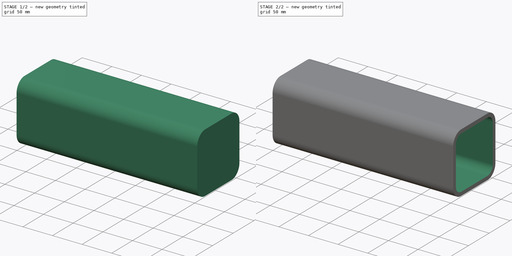
[diagram: build sequence overview — one tinted view per stage of 2, left to right]
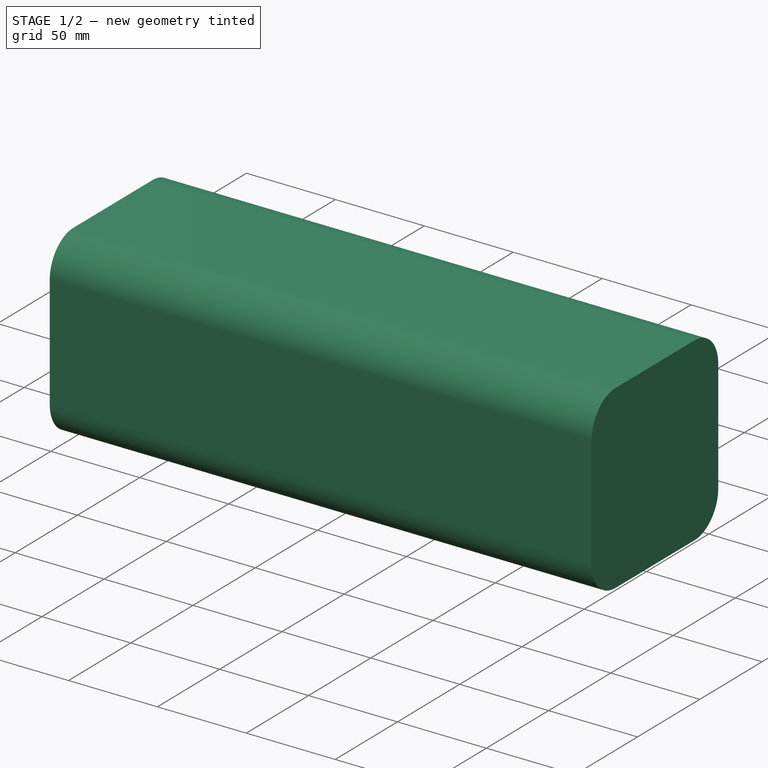
[diagram: stage 1 of 2 — iso view after this stage's code; geometry added in this stage tinted green]
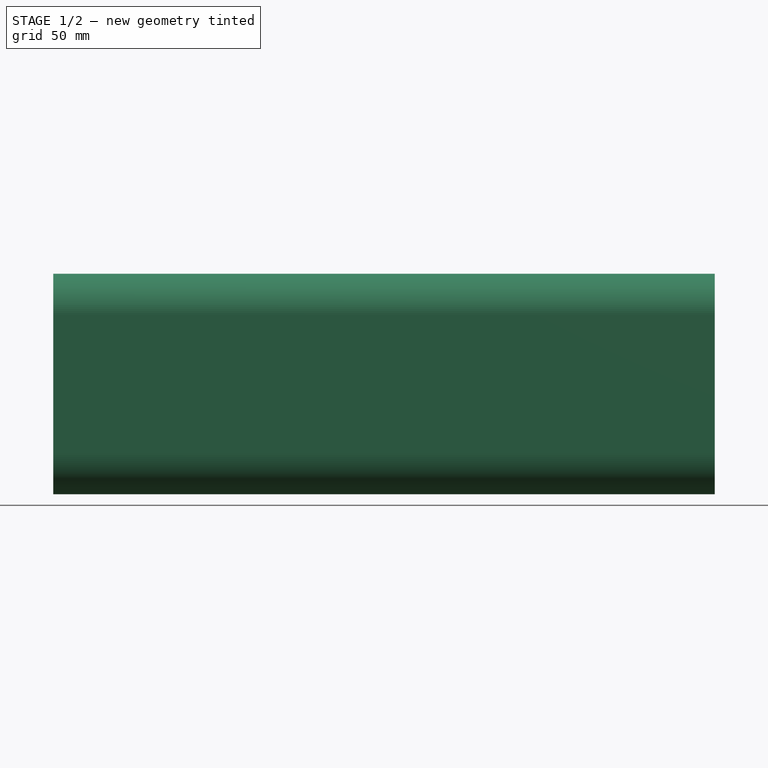
[diagram: stage 1 of 2 — front view after this stage's code; geometry added in this stage tinted green]
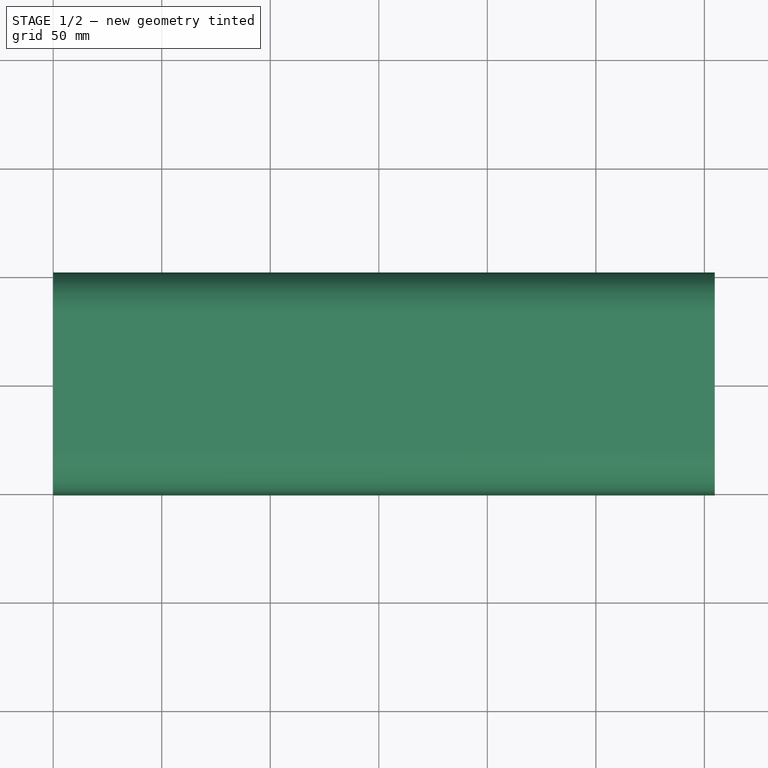
[diagram: stage 1 of 2 — top view after this stage's code; geometry added in this stage tinted green]
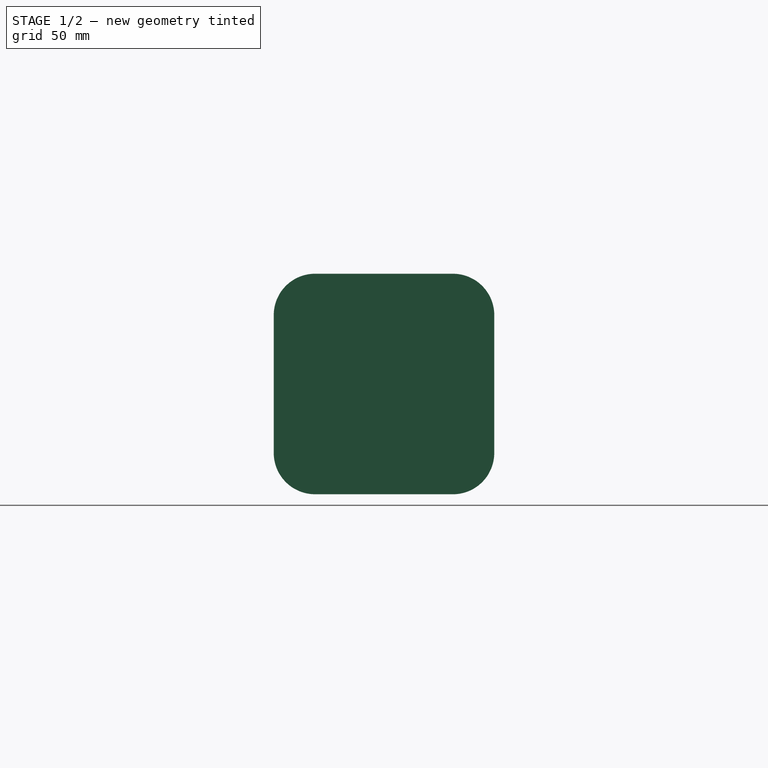
[diagram: stage 1 of 2 — right view after this stage's code; geometry added in this stage tinted green]
FCSTD DOCUMENT  (FreeCAD 0.18R16131 (Git))
Label: 4x4Tube
License: All rights reserved
LicenseURL: http://en.wikipedia.org/wiki/All_rights_reserved
objects: Sketcher::SketchObject×2, PartDesign::Fillet×2, Spreadsheet::Sheet×1, PartDesign::Pad×1, PartDesign::Pocket×1, PartDesign::Body×1
note: 9 computed .brp shape members not serialized (recipe doc carries the construction recipe); baked Part::Feature solids carry a one-line shape summary decoded from their .brp

FEATURE [Spreadsheet::Sheet] Spreadsheet  label="p"
  cells = A1=Title; B1=Desired Dimension; C1=Converted to mm; A2=Width; B2=4; C2(w)==B2 * 25.4; A3=Length; B3=12; C3(length)==B3 * 25.4; A4=Wall Thickness; B4==1 / 4; C4(th)==B4 * 25.4; A5=Tolerance; C5(tol)=2; A6=BevelEdge; B6=0.75; C6(bevel)==B6 * 25.4
FEATURE [Sketcher::SketchObject] Sketch  label="4x4BodySketch"
  MapMode = 5
  Placement = pos=(0,0,0) rot=(0.57735,0.57735,0.57735;2.0944rad)
  Support = -> [YZ_Plane]
  expr: Constraints[6] = p.w
  sketch-geometry (4):
    g0: LineSegment StartX=-50.8 StartY=50.8 StartZ=0 EndX=50.8 EndY=50.8 EndZ=0
    g1: LineSegment StartX=50.8 StartY=50.8 StartZ=0 EndX=50.8 EndY=-50.8 EndZ=0
    g2: LineSegment StartX=50.8 StartY=-50.8 StartZ=0 EndX=-50.8 EndY=-50.8 EndZ=0
    g3: LineSegment StartX=-50.8 StartY=-50.8 StartZ=0 EndX=-50.8 EndY=50.8 EndZ=0
  constraints (10):
    c: Coincident(g0,g1)
    c: Coincident(g1,g2)
    c: Coincident(g2,g3)
    c: Coincident(g3,g0)
    c: Horizontal(g2)
    c: Vertical(g1)
    c: DistanceX(g0,g0) = 101.6
    c: Equal(g1,g0)
    c: Symmetric(g0,g0,g-2)
    c: Symmetric(g0,g2,g-1)
FEATURE [PartDesign::Pad] Pad  label="4x4Pad"
  Length = 304.8
  Length2 = 100.076
  Placement = pos=(0,0,0) rot=(0.57735,0.57735,0.57735;2.0944rad)
  Profile = -> Sketch
  Type = 0
  expr: Length = p.length
FEATURE [PartDesign::Fillet] Fillet  label="OuterBevel"
  Base = -> Pad [Edge2,Edge1,Edge5,Edge8]
  BaseFeature = -> Pad
  Placement = pos=(0,0,0) rot=(0.57735,0.57735,0.57735;2.0944rad)
  Radius = 19.05
  expr: Radius = p.bevel
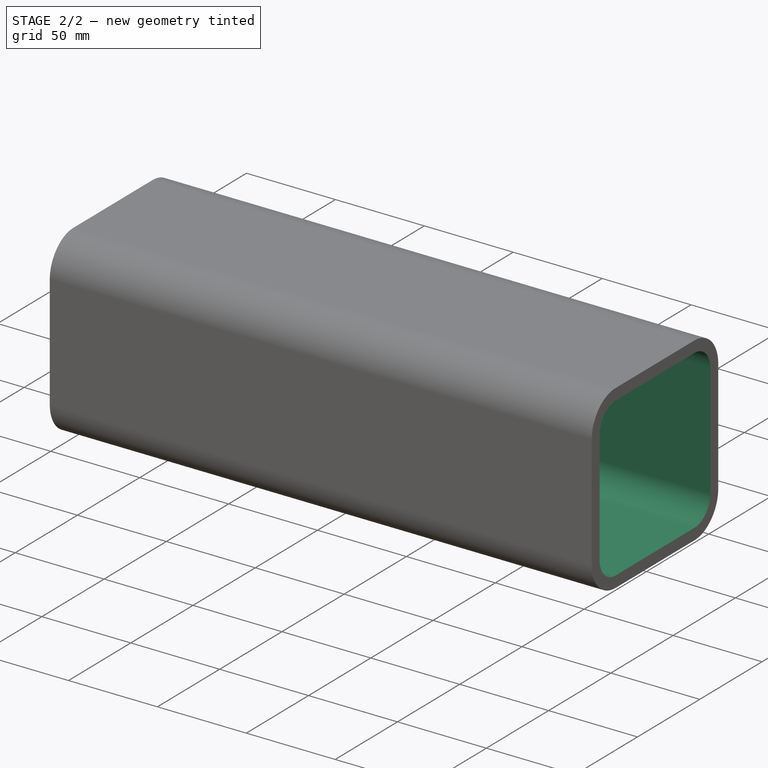
[diagram: stage 2 of 2 — iso view after this stage's code; geometry added in this stage tinted green]
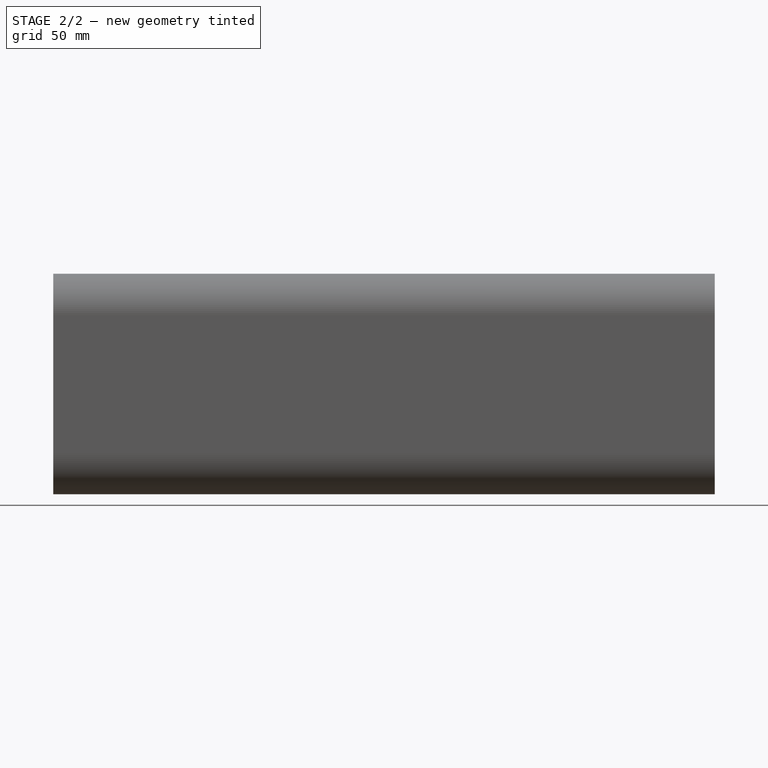
[diagram: stage 2 of 2 — front view after this stage's code; geometry added in this stage tinted green]
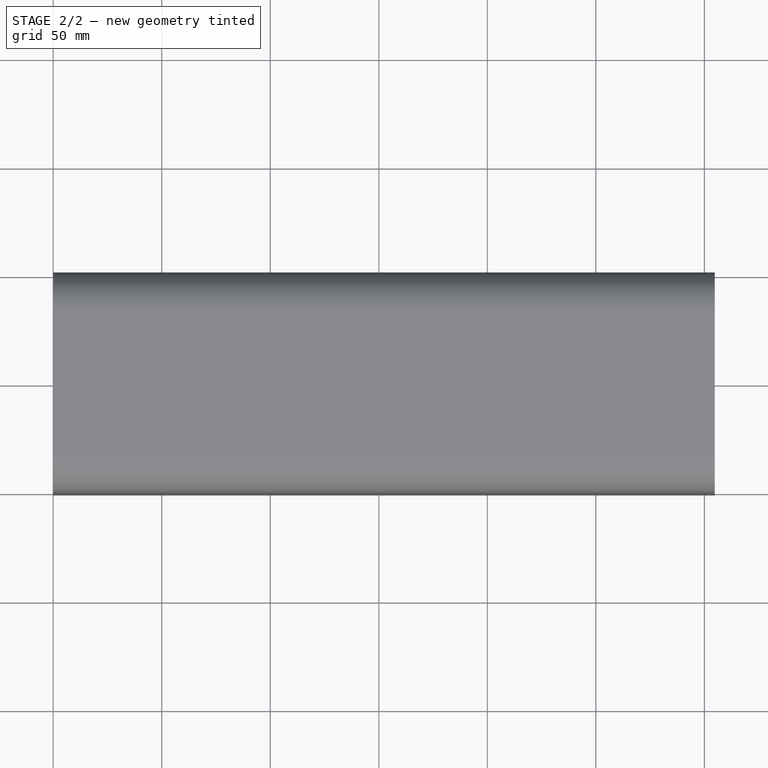
[diagram: stage 2 of 2 — top view after this stage's code; geometry added in this stage tinted green]
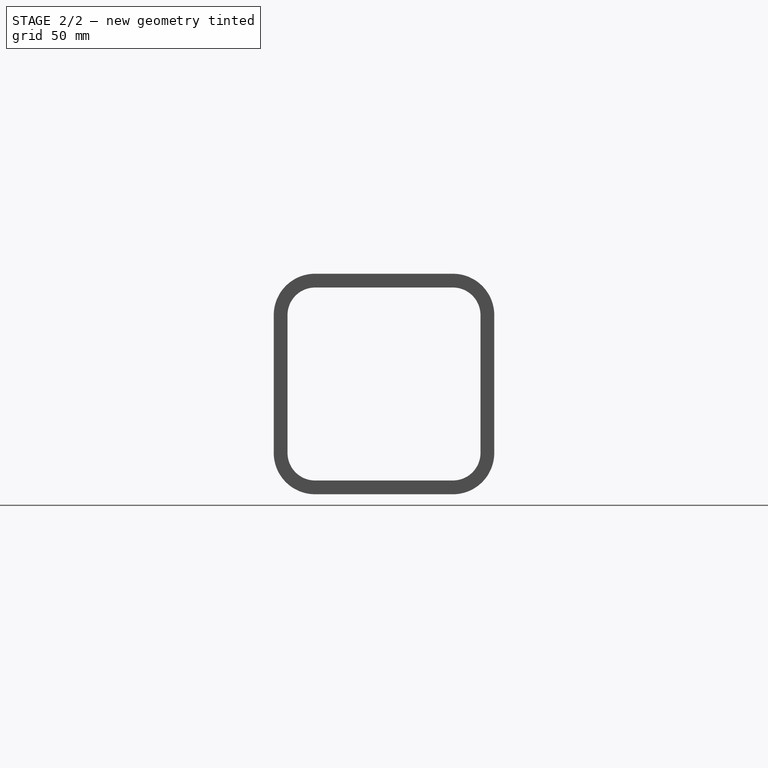
[diagram: stage 2 of 2 — right view after this stage's code; geometry added in this stage tinted green]
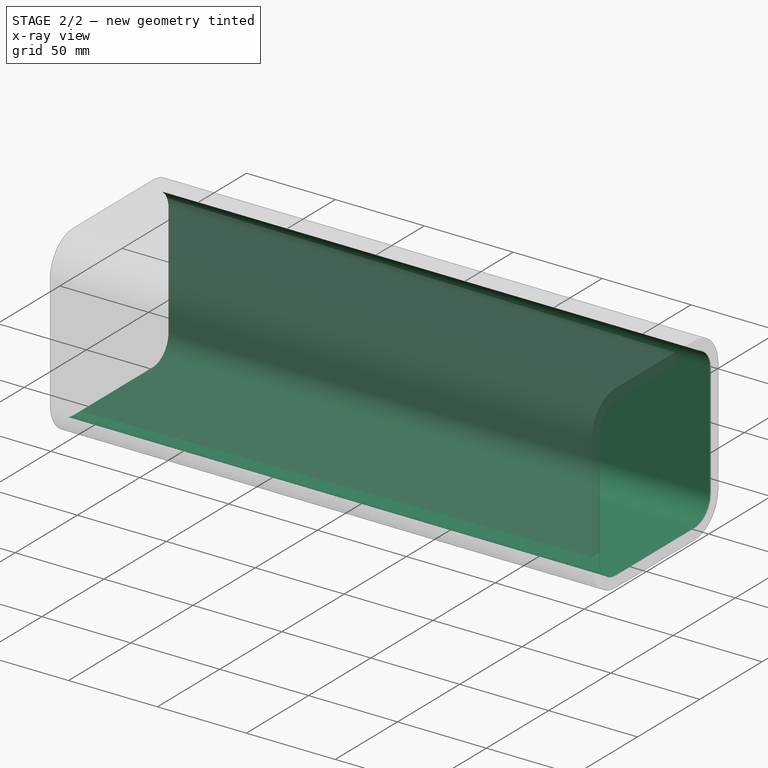
[diagram: stage 2 of 2 — x-ray composite at the iso view; earlier geometry ghosted, this stage's added geometry solid]
FEATURE [Sketcher::SketchObject] Sketch001  label="4x4HoleSketch"
  MapMode = 5
  Placement = pos=(0,0,0) rot=(0.57735,0.57735,0.57735;2.0944rad)
  Support = -> [YZ_Plane]
  expr: Constraints[7] = p.w - p.th * 2
  sketch-geometry (4):
    g0: LineSegment StartX=-44.45 StartY=44.45 StartZ=0 EndX=44.45 EndY=44.45 EndZ=0
    g1: LineSegment StartX=44.45 StartY=44.45 StartZ=0 EndX=44.45 EndY=-44.45 EndZ=0
    g2: LineSegment StartX=44.45 StartY=-44.45 StartZ=0 EndX=-44.45 EndY=-44.45 EndZ=0
    g3: LineSegment StartX=-44.45 StartY=-44.45 StartZ=0 EndX=-44.45 EndY=44.45 EndZ=0
  constraints (10):
    c: Coincident(g0,g1)
    c: Coincident(g1,g2)
    c: Coincident(g2,g3)
    c: Coincident(g3,g0)
    c: Horizontal(g2)
    c: Vertical(g3)
    c: Equal(g1,g0)
    c: DistanceX(g0,g0) = 88.9
    c: Symmetric(g0,g0,g-2)
    c: Symmetric(g1,g0,g-1)
FEATURE [PartDesign::Pocket] Pocket  label="4x4HolePocket"
  BaseFeature = -> Fillet
  Length = 5.08
  Length2 = 100.076
  Placement = pos=(0,0,0) rot=(0.57735,0.57735,0.57735;2.0944rad)
  Profile = -> Sketch001
  Reversed = true
  Type = 1
FEATURE [PartDesign::Fillet] Fillet001  label="InnerBevel"
  Base = -> Pocket [Edge36,Edge34,Edge33,Edge35]
  BaseFeature = -> Pocket
  Placement = pos=(0,0,0) rot=(0.57735,0.57735,0.57735;2.0944rad)
  Radius = 12.7
  expr: Radius = p.bevel - p.th
FEATURE [PartDesign::Body] Body  label="4x4Tube"
  Group = -> [Sketch,Pad,Fillet,Sketch001,Pocket,Fillet001]
  Origin = -> Origin
  Tip = -> Fillet001
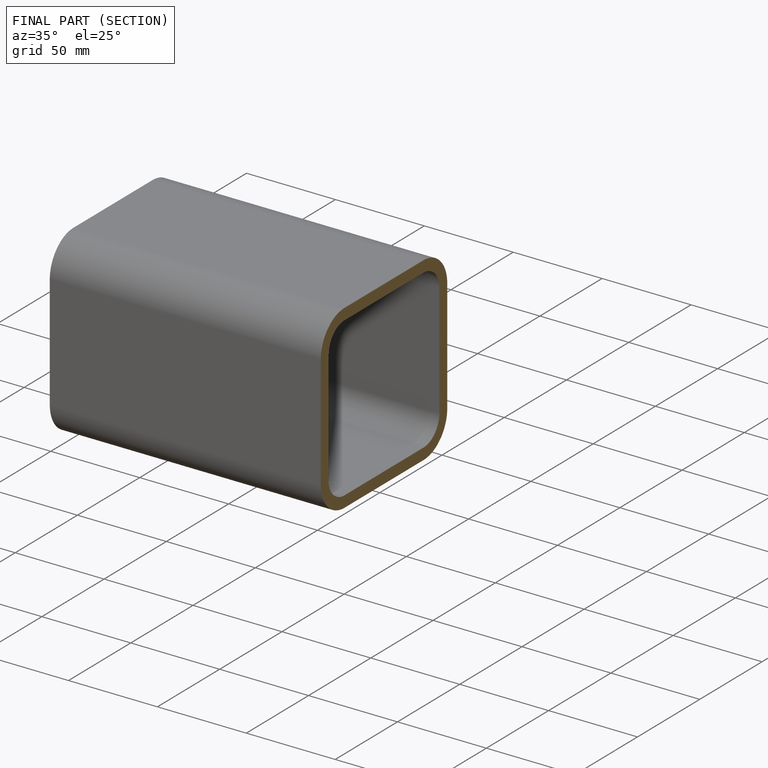
[diagram: finished part — half-section view (interior)]
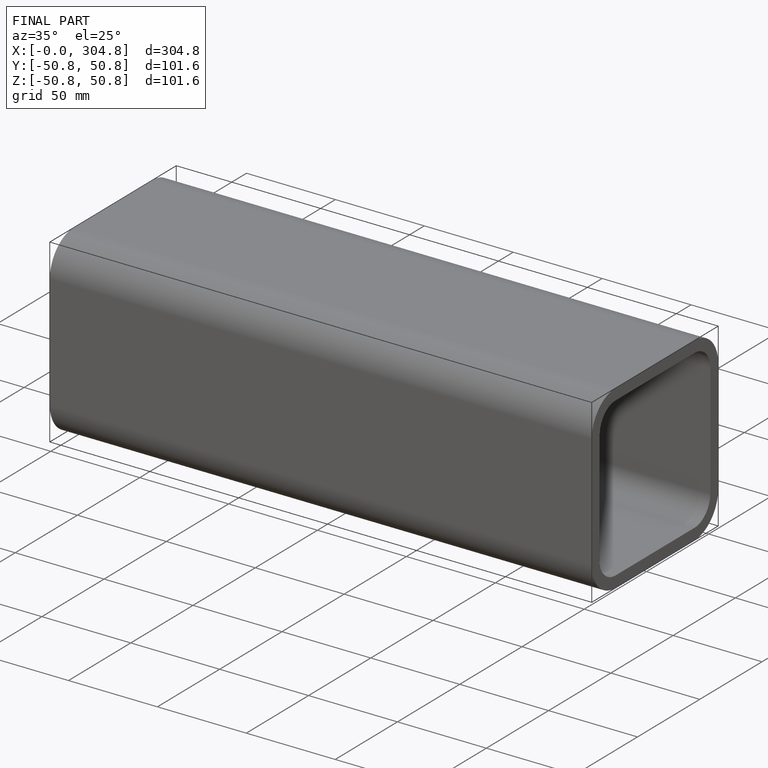
[diagram: finished part — iso view with bounding-box wireframe]
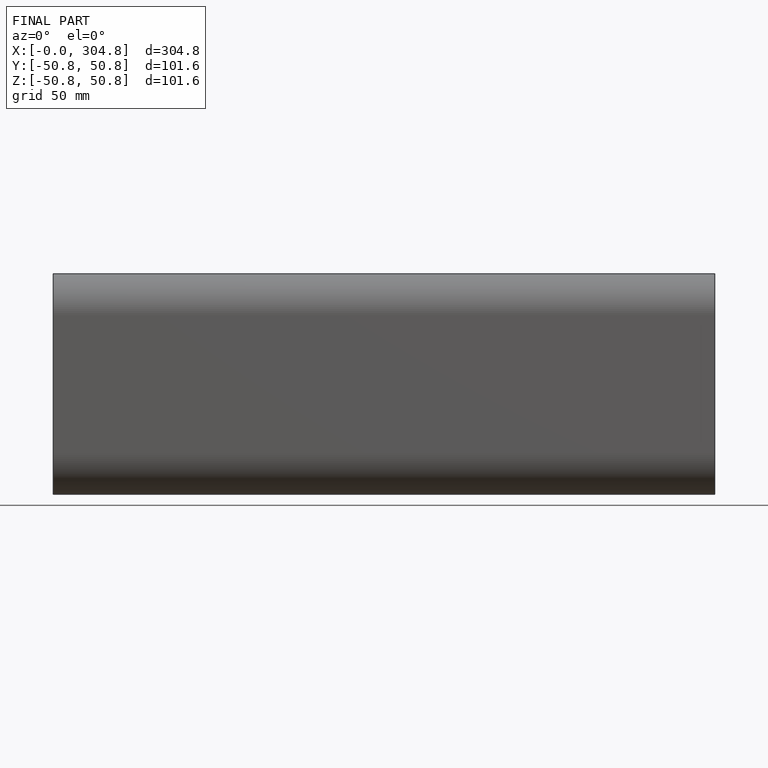
[diagram: finished part — front view with bounding-box wireframe]
